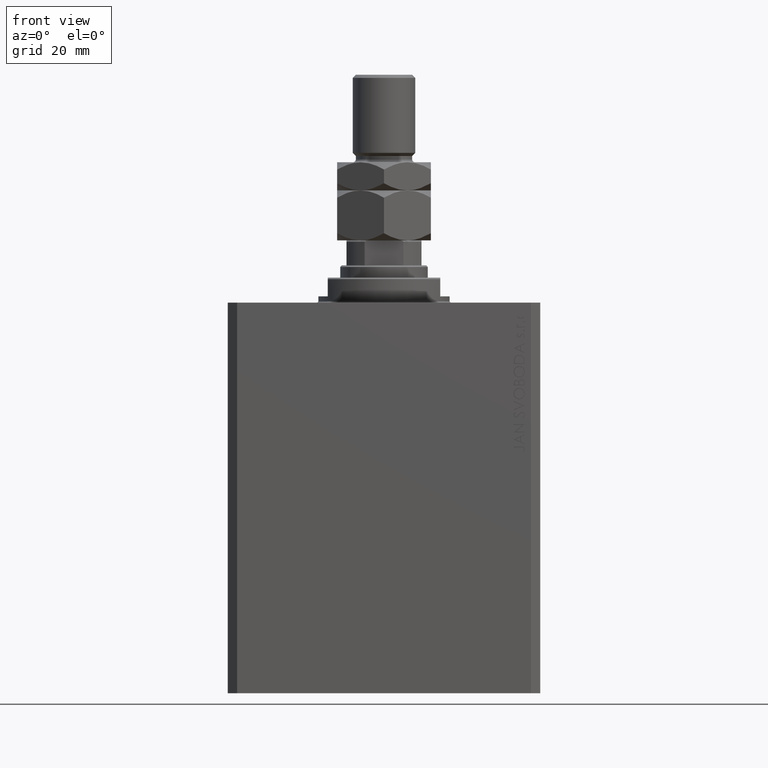
[diagram: clean part render]
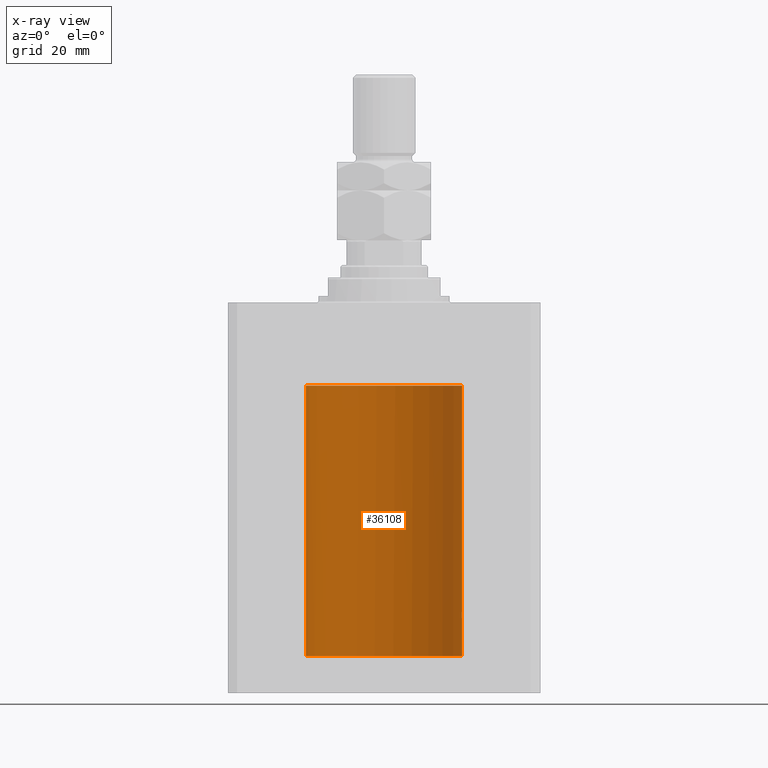
[diagram: x-ray — body ghosted, one internal face saturated and labeled with its STEP entity id]
A machine part, front view, then the same camera in x-ray: the body is ghosted and one INTERNAL B-rep face — a face not visible from any outside direction — is saturated and labeled: STEP entity #36108.
In plain terms, the highlighted cylindrical surface (partial cylindrical patch) has radius 25 mm, axis along (0, 0, 1).
Its self-contained STEP definition (entity closure, byte-faithful):
#797 = EDGE_LOOP ( 'NONE', ( #9118, #37287, #25618, #26005, #38746, #19670, #6151, #5097 ) ) ;
#1610 = CARTESIAN_POINT ( 'NONE',  ( 24.92422785753204906, 1.947526681255389525, -100.5244453533215392 ) ) ;
#2286 = CARTESIAN_POINT ( 'NONE',  ( 25.00000000000000000, 0.000000000000000000, -113.0999999999999943 ) ) ;
#2666 = CARTESIAN_POINT ( 'NONE',  ( 24.99199530066696795, 0.6440939830361788188, -98.10201906410962636 ) ) ;
#2964 = CARTESIAN_POINT ( 'NONE',  ( -25.00000000000000355, 0.2156805908219409651, -26.99999999999999645 ) ) ;
#3229 = EDGE_CURVE ( 'NONE', #13269, #22112, #17520, .T. ) ;
#3643 = DIRECTION ( 'NONE',  ( 0.000000000000000000, 0.000000000000000000, 1.000000000000000000 ) ) ;
#4180 = CARTESIAN_POINT ( 'NONE',  ( -24.97118339206214088, 1.199999999999987521, -26.59999999999999787 ) ) ;
#4181 = CARTESIAN_POINT ( 'NONE',  ( 24.99895171050671294, 0.2622427397369110347, -101.9870152263268182 ) ) ;
#4866 = CARTESIAN_POINT ( 'NONE',  ( 25.00000000000000000, 0.000000000000000000, -26.60000000000000142 ) ) ;
#5097 = ORIENTED_EDGE ( 'NONE', *, *, #17973, .T. ) ;
#5399 = EDGE_CURVE ( 'NONE', #9339, #37831, #12508, .T. ) ;
#6000 = AXIS2_PLACEMENT_3D ( 'NONE', #7401, #3643, #24933 ) ;
#6151 = ORIENTED_EDGE ( 'NONE', *, *, #44931, .T. ) ;
#6558 = AXIS2_PLACEMENT_3D ( 'NONE', #30115, #9088, #37304 ) ;
#6719 = CARTESIAN_POINT ( 'NONE',  ( -24.98680550328683125, 0.8376193197215402453, -26.82896000732461061 ) ) ;
#6832 = CARTESIAN_POINT ( 'NONE',  ( -25.00000000000000000, 3.060241555953638093E-15, -26.99999999999999645 ) ) ;
#7076 = VERTEX_POINT ( 'NONE', #39877 ) ;
#7401 = CARTESIAN_POINT ( 'NONE',  ( 0.000000000000000000, 0.000000000000000000, -113.0999999999999943 ) ) ;
#7459 = DIRECTION ( 'NONE',  ( -0.000000000000000000, -0.000000000000000000, 1.000000000000000000 ) ) ;
#7529 = B_SPLINE_CURVE_WITH_KNOTS ( 'NONE', 3,
 ( #32436, #25008, #4181, #17990, #28739, #42951, #10960, #18453, #39433, #43877, #37064, #1610, #40816, #37302 ),
 .UNSPECIFIED., .F., .F.,
 ( 4, 2, 2, 2, 2, 2, 4 ),
 ( 3.511612687242254074E-18, 0.0003910529405526748294, 0.0007821058811053461894, 0.001173158821658017766, 0.001564211762210689343, 0.002346317643316032063, 0.003128423524421375217 ),
 .UNSPECIFIED. ) ;
#7862 = CARTESIAN_POINT ( 'NONE',  ( 0.000000000000000000, 0.000000000000000000, -113.0999999999999943 ) ) ;
#9088 = DIRECTION ( 'NONE',  ( 0.000000000000000000, 0.000000000000000000, 1.000000000000000000 ) ) ;
#9118 = ORIENTED_EDGE ( 'NONE', *, *, #14263, .F. ) ;
#9173 = EDGE_CURVE ( 'NONE', #37831, #35014, #7529, .T. ) ;
#9339 = VERTEX_POINT ( 'NONE', #2286 ) ;
#10224 = CARTESIAN_POINT ( 'NONE',  ( -24.97950800354324485, 1.026770500031154887, -26.72992212497661768 ) ) ;
#10960 = CARTESIAN_POINT ( 'NONE',  ( 24.98014008684978648, 1.002218476749560327, -101.7356982428406553 ) ) ;
#12495 = CARTESIAN_POINT ( 'NONE',  ( 24.92790171662583276, 1.897957730269075105, -99.35585098575664631 ) ) ;
#12508 = LINE ( 'NONE', #36773, #14081 ) ;
#12540 = DIRECTION ( 'NONE',  ( -0.000000000000000000, -0.000000000000000000, 1.000000000000000000 ) ) ;
#13183 = CARTESIAN_POINT ( 'NONE',  ( 24.97045842037802998, 1.219816859706691625, -98.40971381657300299 ) ) ;
#13269 = VERTEX_POINT ( 'NONE', #19285 ) ;
#14081 = VECTOR ( 'NONE', #40999, 1000.000000000000000 ) ;
#14198 = CIRCLE ( 'NONE', #6000, 25.00000000000000000 ) ;
#14263 = EDGE_CURVE ( 'NONE', #7076, #22543, #30768, .T. ) ;
#14863 = FACE_OUTER_BOUND ( 'NONE', #797, .T. ) ;
#16048 = EDGE_CURVE ( 'NONE', #35014, #13269, #26101, .T. ) ;
#16963 = CARTESIAN_POINT ( 'NONE',  ( 24.91987158875419794, 2.000000000000375255, -100.0000000000000000 ) ) ;
#17520 = LINE ( 'NONE', #35895, #27469 ) ;
#17973 = EDGE_CURVE ( 'NONE', #40062, #22543, #21985, .T. ) ;
#17990 = CARTESIAN_POINT ( 'NONE',  ( 24.99496001540385848, 0.5180074392840622322, -101.9361479946135205 ) ) ;
#18453 = CARTESIAN_POINT ( 'NONE',  ( 24.97046928552373046, 1.219632852334577633, -101.5904672177837540 ) ) ;
#19285 = CARTESIAN_POINT ( 'NONE',  ( 25.00000000000000000, -1.072061970195355044E-23, -98.00000000000000000 ) ) ;
#19670 = ORIENTED_EDGE ( 'NONE', *, *, #3229, .T. ) ;
#19766 = CARTESIAN_POINT ( 'NONE',  ( 24.92092960952687264, 1.986938806757485132, -99.73699118910590755 ) ) ;
#19986 = CARTESIAN_POINT ( 'NONE',  ( 25.00000000000000000, 0.1305261351234896783, -97.99999999999998579 ) ) ;
#20217 = CARTESIAN_POINT ( 'NONE',  ( 24.91987158875419794, 2.000000000000375255, -100.0000000000000000 ) ) ;
#20343 = CARTESIAN_POINT ( 'NONE',  ( 25.00000000000000000, 3.613683980139323145E-15, -102.0000000000000142 ) ) ;
#21985 = B_SPLINE_CURVE_WITH_KNOTS ( 'NONE', 3,
 ( #42430, #10224, #6719, #43129, #2964, #31917 ),
 .UNSPECIFIED., .F., .F.,
 ( 4, 2, 4 ),
 ( 0.000000000000000000, 0.0006408866495840856480, 0.001281773299168171296 ),
 .UNSPECIFIED. ) ;
#22110 = DIRECTION ( 'NONE',  ( -0.000000000000000000, -0.000000000000000000, 1.000000000000000000 ) ) ;
#22112 = VERTEX_POINT ( 'NONE', #4866 ) ;
#22543 = VERTEX_POINT ( 'NONE', #6832 ) ;
#23890 = VECTOR ( 'NONE', #12540, 1000.000000000000000 ) ;
#23950 = CARTESIAN_POINT ( 'NONE',  ( 24.94947734723934829, 1.590234439578154468, -98.78011295253192259 ) ) ;
#24933 = DIRECTION ( 'NONE',  ( 1.000000000000000000, 0.000000000000000000, 0.000000000000000000 ) ) ;
#25008 = CARTESIAN_POINT ( 'NONE',  ( 25.00000000000000355, 0.1322318523520167877, -102.0000000000000142 ) ) ;
#25618 = ORIENTED_EDGE ( 'NONE', *, *, #5399, .T. ) ;
#26005 = ORIENTED_EDGE ( 'NONE', *, *, #9173, .T. ) ;
#26101 = B_SPLINE_CURVE_WITH_KNOTS ( 'NONE', 3,
 ( #20217, #34205, #19766, #44491, #12495, #34428, #40988, #23950, #45413, #26794, #13183, #37470, #27467, #2666, #40748, #30271, #19986, #38147 ),
 .UNSPECIFIED., .F., .F.,
 ( 4, 2, 2, 2, 2, 2, 2, 2, 4 ),
 ( 0.003128423524421375217, 0.003519296810509137119, 0.003910170096596899021, 0.004301043382684660923, 0.004691916668772423693, 0.005082789954860184728, 0.005473663240947946630, 0.005864536527035708532, 0.006255409813123470435 ),
 .UNSPECIFIED. ) ;
#26794 = CARTESIAN_POINT ( 'NONE',  ( 24.96525661602875701, 1.320872503675244003, -98.49244428507738292 ) ) ;
#26930 = AXIS2_PLACEMENT_3D ( 'NONE', #7862, #22110, #44716 ) ;
#27467 = CARTESIAN_POINT ( 'NONE',  ( 24.98457651818866765, 0.8863534138924961114, -98.20234421602245334 ) ) ;
#27469 = VECTOR ( 'NONE', #7459, 1000.000000000000000 ) ;
#28739 = CARTESIAN_POINT ( 'NONE',  ( 24.99196954445030627, 0.6450912151121352966, -101.8976436764501869 ) ) ;
#30115 = CARTESIAN_POINT ( 'NONE',  ( 0.000000000000000000, 0.000000000000000000, -26.60000000000000142 ) ) ;
#30271 = CARTESIAN_POINT ( 'NONE',  ( 24.99894413130754600, 0.2631018416927612402, -98.01307842488789390 ) ) ;
#30768 = LINE ( 'NONE', #37741, #23890 ) ;
#31917 = CARTESIAN_POINT ( 'NONE',  ( -25.00000000000000000, 3.060241555953638093E-15, -26.99999999999999645 ) ) ;
#32436 = CARTESIAN_POINT ( 'NONE',  ( 25.00000000000000000, 3.613683980139323145E-15, -102.0000000000000142 ) ) ;
#34205 = CARTESIAN_POINT ( 'NONE',  ( 24.91987158875419439, 2.000000000000375699, -99.86952236750346401 ) ) ;
#34428 = CARTESIAN_POINT ( 'NONE',  ( 24.93533359819881667, 1.797683477752171743, -99.11371245509397454 ) ) ;
#34850 = CIRCLE ( 'NONE', #6558, 25.00000000000000000 ) ;
#35014 = VERTEX_POINT ( 'NONE', #16963 ) ;
#35895 = CARTESIAN_POINT ( 'NONE',  ( 25.00000000000000000, 0.000000000000000000, -113.0999999999999943 ) ) ;
#35977 = EDGE_CURVE ( 'NONE', #9339, #7076, #14198, .T. ) ;
#36108 = ADVANCED_FACE ( 'NONE', ( #14863 ), #43350, .F. ) ;
#36773 = CARTESIAN_POINT ( 'NONE',  ( 25.00000000000000000, 0.000000000000000000, -113.0999999999999943 ) ) ;
#37064 = CARTESIAN_POINT ( 'NONE',  ( 24.93900639076503722, 1.748128916801924504, -101.0059564568424264 ) ) ;
#37287 = ORIENTED_EDGE ( 'NONE', *, *, #35977, .F. ) ;
#37302 = CARTESIAN_POINT ( 'NONE',  ( 24.91987158875419794, 2.000000000000375255, -100.0000000000000000 ) ) ;
#37304 = DIRECTION ( 'NONE',  ( 1.000000000000000000, 0.000000000000000000, 0.000000000000000000 ) ) ;
#37470 = CARTESIAN_POINT ( 'NONE',  ( 24.98009620012517829, 1.003265033550135854, -98.26494305889434600 ) ) ;
#37741 = CARTESIAN_POINT ( 'NONE',  ( -25.00000000000000000, 3.061616997868383043E-15, -113.0999999999999943 ) ) ;
#37831 = VERTEX_POINT ( 'NONE', #20343 ) ;
#38147 = CARTESIAN_POINT ( 'NONE',  ( 25.00000000000000000, -1.072061970195355044E-23, -98.00000000000000000 ) ) ;
#38746 = ORIENTED_EDGE ( 'NONE', *, *, #16048, .T. ) ;
#39433 = CARTESIAN_POINT ( 'NONE',  ( 24.96516502151963124, 1.322522485723470531, -101.5059723511098184 ) ) ;
#39877 = CARTESIAN_POINT ( 'NONE',  ( -25.00000000000000000, 3.061616997868383043E-15, -113.0999999999999943 ) ) ;
#40062 = VERTEX_POINT ( 'NONE', #4180 ) ;
#40748 = CARTESIAN_POINT ( 'NONE',  ( 24.99493190796009046, 0.5194315891213243663, -98.06421314474680173 ) ) ;
#40816 = CARTESIAN_POINT ( 'NONE',  ( 24.91987158875419439, 2.000000000000375699, -100.2610752061100072 ) ) ;
#40988 = CARTESIAN_POINT ( 'NONE',  ( 24.93982559358191153, 1.735040297787688646, -98.99670286233153149 ) ) ;
#40999 = DIRECTION ( 'NONE',  ( -0.000000000000000000, -0.000000000000000000, 1.000000000000000000 ) ) ;
#42430 = CARTESIAN_POINT ( 'NONE',  ( -24.97118339206214088, 1.199999999999987521, -26.59999999999999787 ) ) ;
#42951 = CARTESIAN_POINT ( 'NONE',  ( 24.98454161695537223, 0.8873356620645981296, -101.7971726743456742 ) ) ;
#43129 = CARTESIAN_POINT ( 'NONE',  ( -24.99718407171789991, 0.4276024655076519632, -26.96566959702169086 ) ) ;
#43350 = CYLINDRICAL_SURFACE ( 'NONE', #26930, 25.00000000000000000 ) ;
#43877 = CARTESIAN_POINT ( 'NONE',  ( 24.94948532700468391, 1.599156973339999066, -101.2291341524913690 ) ) ;
#44491 = CARTESIAN_POINT ( 'NONE',  ( 24.92495585240437350, 1.935777409849491759, -99.48051441220836466 ) ) ;
#44716 = DIRECTION ( 'NONE',  ( 1.000000000000000000, 0.000000000000000000, 0.000000000000000000 ) ) ;
#44931 = EDGE_CURVE ( 'NONE', #22112, #40062, #34850, .T. ) ;
#45413 = CARTESIAN_POINT ( 'NONE',  ( 24.95467834240023919, 1.507571193169164436, -98.67914516237102873 ) ) ;